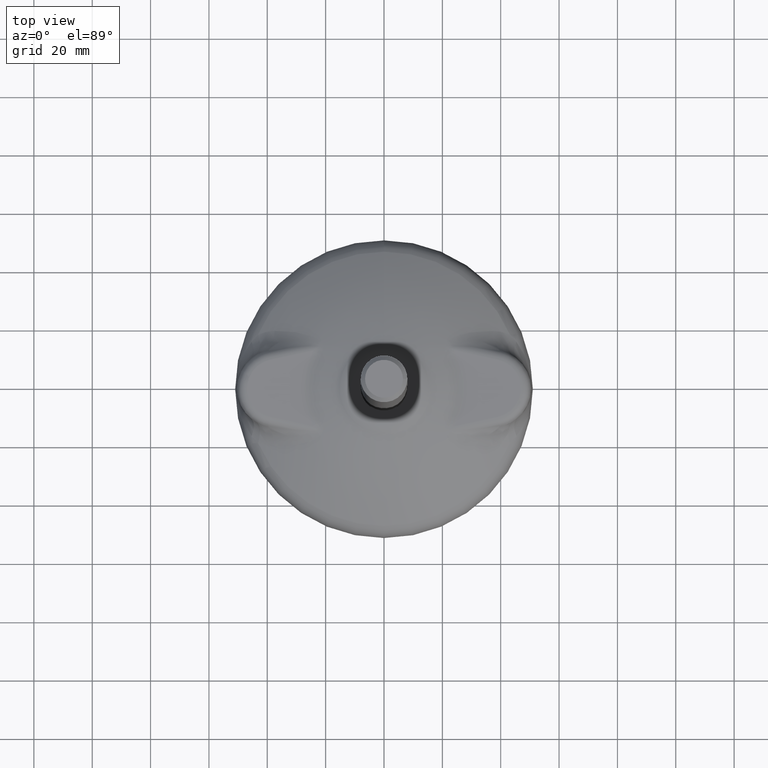
[diagram: clean part render]
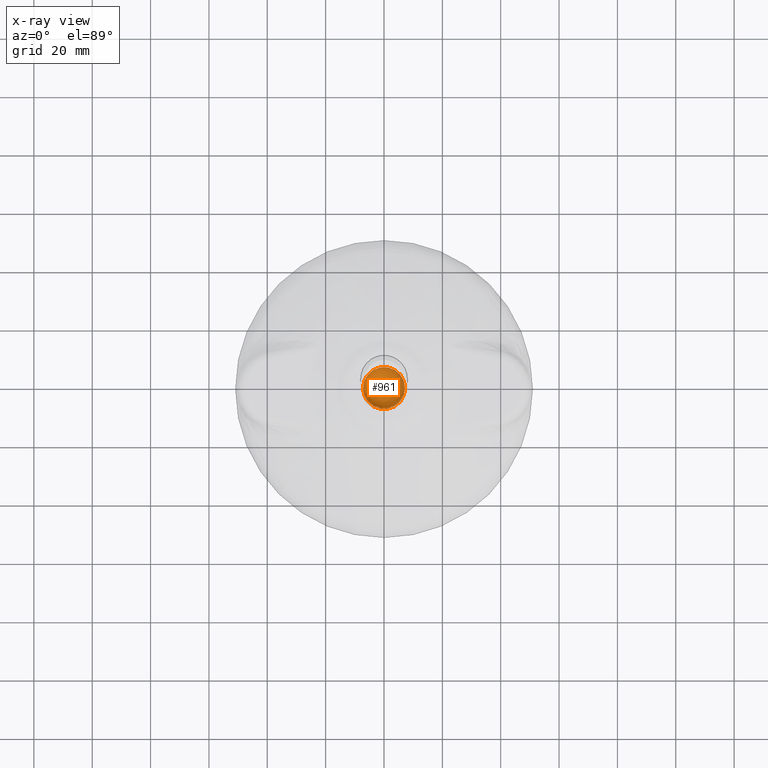
[diagram: x-ray — body ghosted, one internal face saturated and labeled with its STEP entity id]
A machine part, top view, then the same camera in x-ray: the body is ghosted and one INTERNAL B-rep face — a face not visible from any outside direction — is saturated and labeled: STEP entity #961.
In plain terms, the highlighted spherical surface has radius 7.2 mm.
Its self-contained STEP definition (entity closure, byte-faithful):
#17=SPHERICAL_SURFACE('',#1089,7.2);
#196=FACE_OUTER_BOUND('',#264,.T.);
#264=EDGE_LOOP('',(#772,#773,#774,#775));
#333=CIRCLE('',#1085,6.95000000000002);
#334=CIRCLE('',#1086,6.95000000000002);
#337=CIRCLE('',#1090,7.2);
#413=VERTEX_POINT('',#5403);
#414=VERTEX_POINT('',#5404);
#417=VERTEX_POINT('',#5413);
#535=EDGE_CURVE('',#413,#414,#333,.T.);
#536=EDGE_CURVE('',#414,#413,#334,.T.);
#540=EDGE_CURVE('',#417,#413,#337,.T.);
#772=ORIENTED_EDGE('',*,*,#535,.T.);
#773=ORIENTED_EDGE('',*,*,#536,.T.);
#774=ORIENTED_EDGE('',*,*,#540,.F.);
#775=ORIENTED_EDGE('',*,*,#540,.T.);
#961=ADVANCED_FACE('',(#196),#17,.F.);
#1085=AXIS2_PLACEMENT_3D('',#5405,#1305,#1306);
#1086=AXIS2_PLACEMENT_3D('',#5406,#1307,#1308);
#1089=AXIS2_PLACEMENT_3D('',#5412,#1314,#1315);
#1090=AXIS2_PLACEMENT_3D('',#5414,#1316,#1317);
#1305=DIRECTION('center_axis',(0.,0.,1.));
#1306=DIRECTION('ref_axis',(1.,0.,0.));
#1307=DIRECTION('center_axis',(0.,0.,1.));
#1308=DIRECTION('ref_axis',(1.,0.,0.));
#1314=DIRECTION('center_axis',(0.,6.12323399573676E-17,1.));
#1315=DIRECTION('ref_axis',(0.,1.,0.));
#1316=DIRECTION('center_axis',(-1.,-1.22464679914735E-16,0.));
#1317=DIRECTION('ref_axis',(1.22464679914735E-16,-1.,0.));
#5403=CARTESIAN_POINT('',(8.51129525407413E-16,-6.95000000000002,21.5608319167749));
#5404=CARTESIAN_POINT('',(-6.95000000000002,-8.51129525407413E-16,21.5608319167749));
#5405=CARTESIAN_POINT('Origin',(0.,0.,21.5608319167749));
#5406=CARTESIAN_POINT('Origin',(0.,0.,21.5608319167749));
#5412=CARTESIAN_POINT('Origin',(0.,0.,19.6800076293945));
#5413=CARTESIAN_POINT('',(5.39913521758269E-32,-4.40872847693047E-16,12.4800076293945));
#5414=CARTESIAN_POINT('Origin',(0.,0.,19.6800076293945));